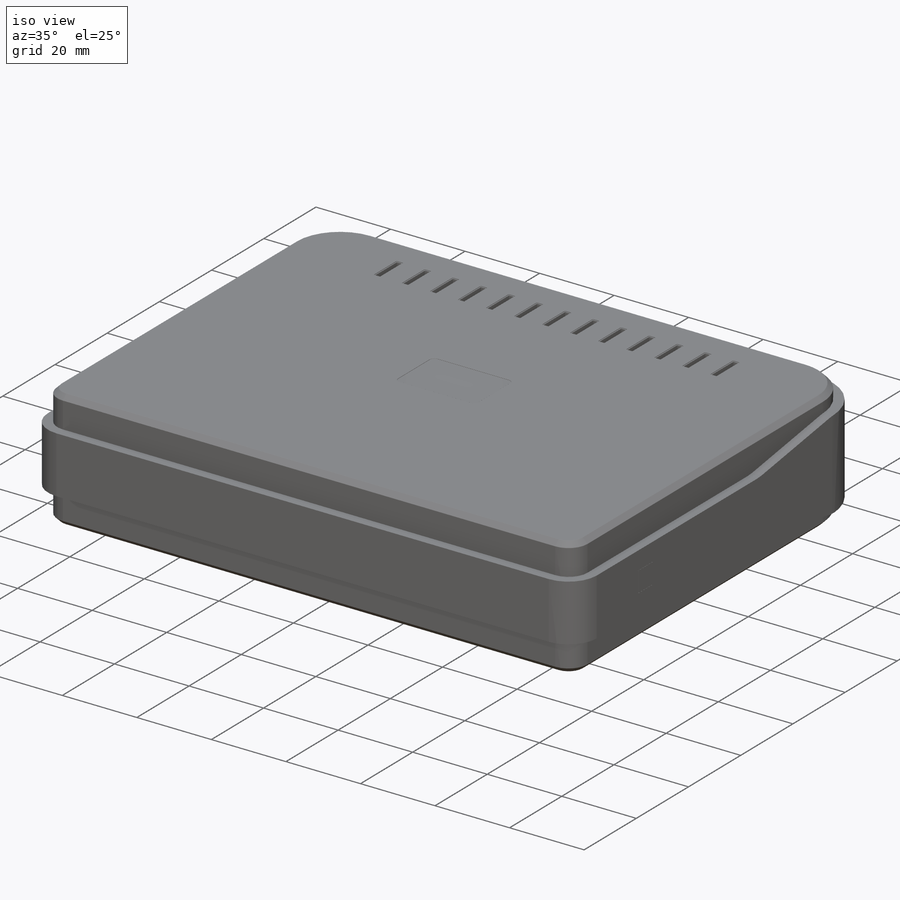
[diagram: iso view]
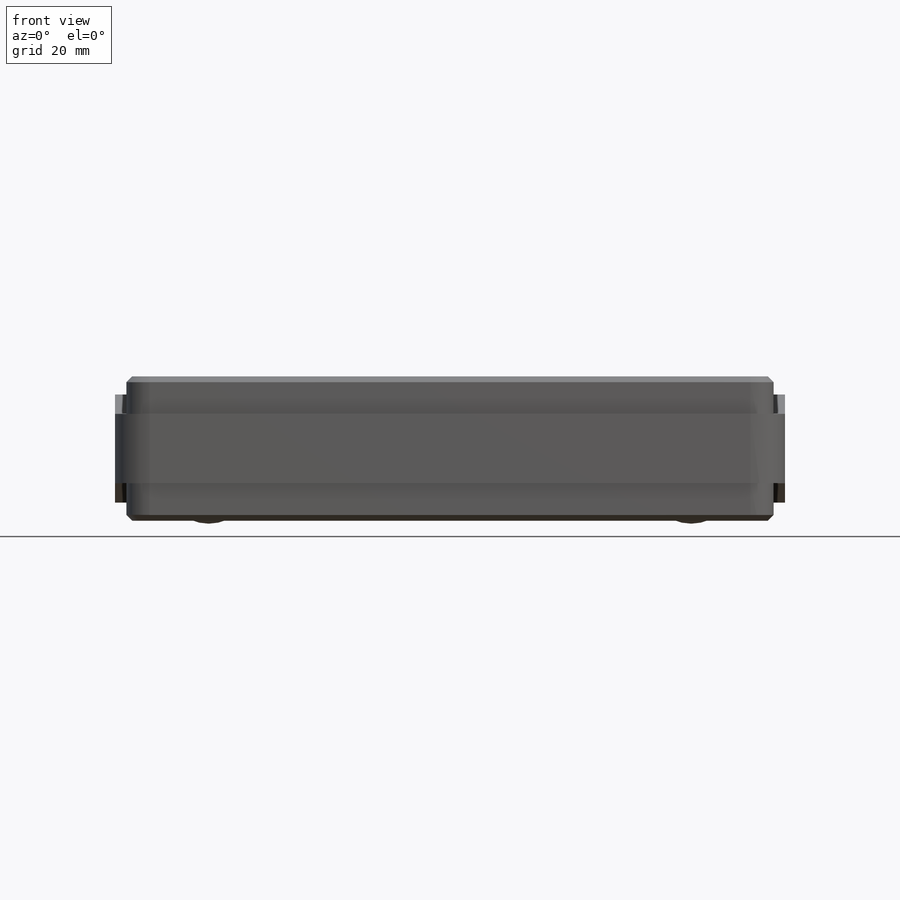
[diagram: front view]
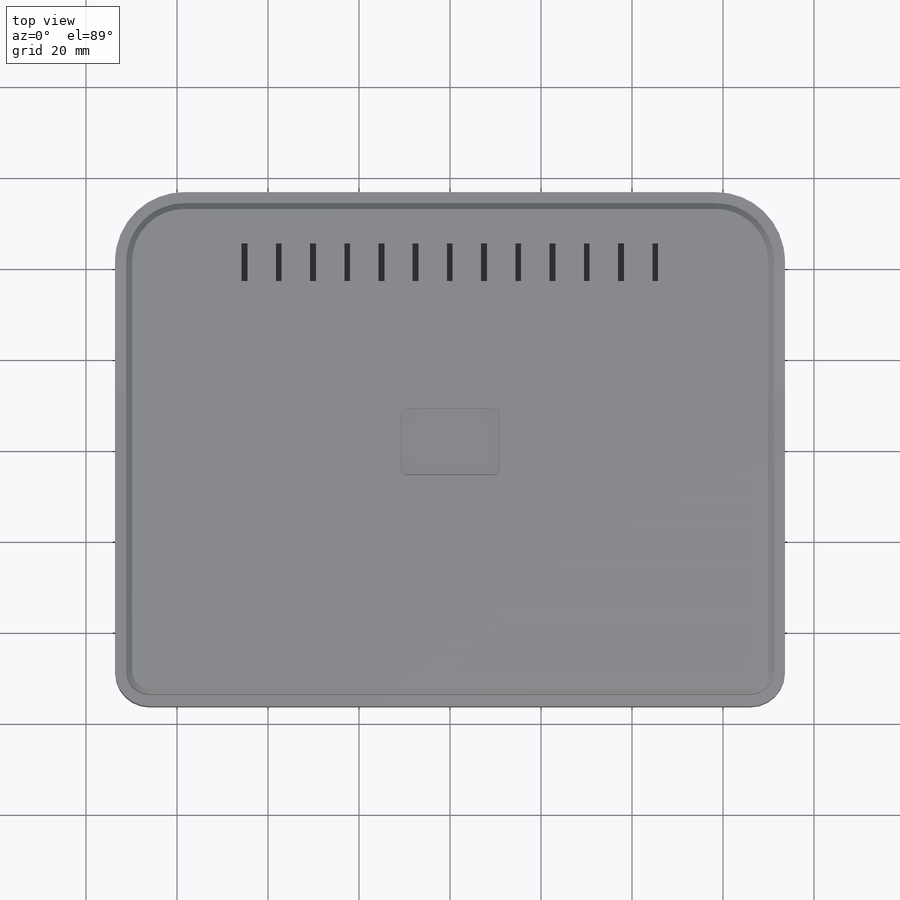
[diagram: top view]
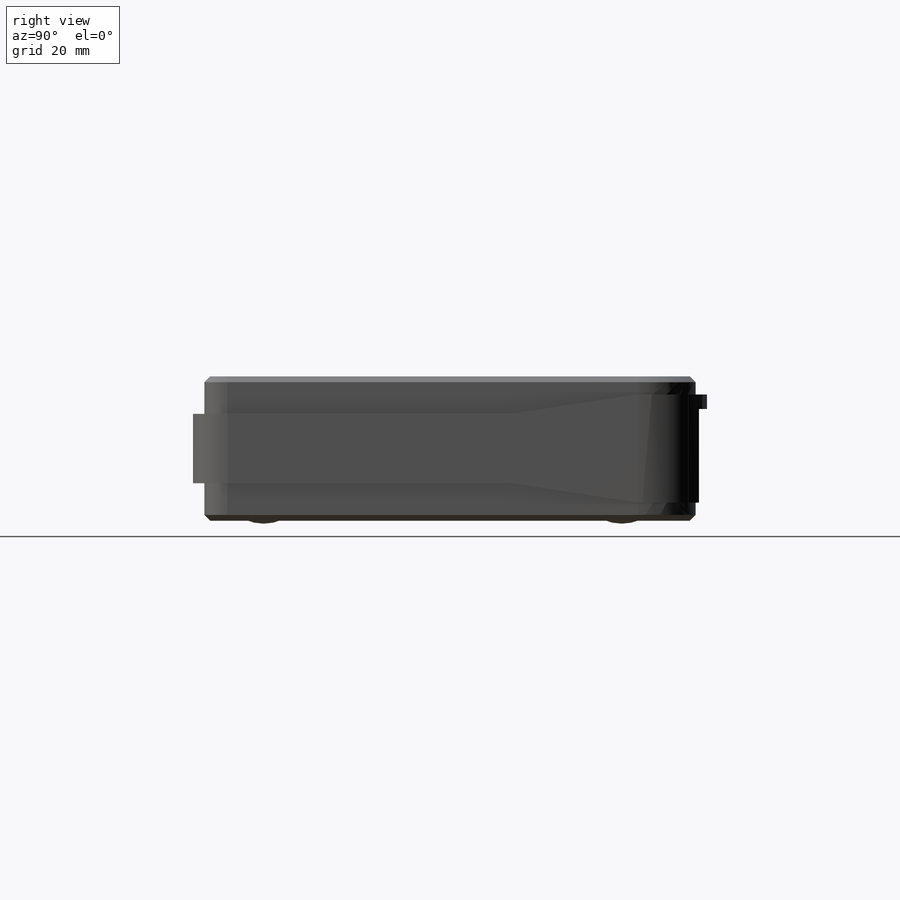
[diagram: right view]
SOLIDWORKS PART (.sldprt)
format: sldprt  version: not decoded by parser v0  size: 1,792,000 bytes
history: native  units: mm
features: sketch x37, cut_extrude x23, fillet x13, extrude x9, pattern_linear x3, chamfer x2, plane x2, revolve x2, mirror x2, material x1 (+13 scaffold rows collapsed)
feature tree (107):
  scaffold x13  (default folders/planes/origin — collapsed)
  material  "PBT General Purpose"
  sketch  "Sketch1"  dims[D1=142.24mm D2=107.95mm]
  extrude  "Boss-Extrude1"  Depth=31.75mm
  fillet  "Fillet1"  Radius=5.08mm
  fillet  "Fillet9"  Radius=12.7mm
  chamfer  "Chamfer1"  Distance=1.27mm Angle=45deg
  sketch  "Sketch2"  dims[D1=82.55mm D2=49.53mm]
  cut_extrude  "Cut-Extrude1"  Depth=0.508mm
  fillet  "Fillet2"  Radius=7.62mm
  fillet  "Fillet3"  Radius=0.254mm
  sketch  "Sketch3"  dims[D1=25.4mm D2=1.27mm D3=8.255mm D4=8.89mm]
  cut_extrude  "Cut-Extrude2"  Depth=4.445mm
  sketch  "Sketch4"  dims[D1=0.254mm D2=0.254mm]
  cut_extrude  "Cut-Extrude3"  Depth=0.127mm
  fillet  "Fillet4"  Radius=0.254mm
  pattern_linear  "LPattern1"  Count1=13 Count2=1 Spacing1=7.522308mm Spacing2=2.54mm
  sketch  "Sketch5"  dims[D1=1.27mm D2=8.255mm D3=25.4mm D4=8.89mm]
  cut_extrude  "Cut-Extrude4"  Depth=4.445mm
  sketch  "Sketch6"  dims[D1=0.254mm]
  cut_extrude  "Cut-Extrude5"  Depth=0.254mm
  fillet  "Fillet5"  Radius=0.254mm
  pattern_linear  "LPattern2"  Count1=13 Count2=1 Spacing1=7.522308mm Spacing2=2.54mm
  sketch  "Sketch7"  dims[c1.D3=8.255mm c1.D1=7.62mm c1.D2=13.97mm c2.D1=12.065mm c2.D2=13.97mm c3.D1=12.065mm]
  cut_extrude  "Cut-Extrude6"  Depth=0.254mm
  plane  "Plane1"
  sketch  "Sketch8"  dims[D1=0.635mm]
  revolve  "Revolve1"  Angle=360deg
  sketch  "Sketch9"  dims[D1=6.35mm]
  cut_extrude  "Cut-Extrude7"  Depth=0.254mm
  plane  "Plane2"
  sketch  "Sketch10"  dims[D1=0.0mm]
  revolve  "Revolve2"  Angle=360deg
  mirror  "Mirror1"
  sketch  "Sketch11"  dims[c1.D1=7.62mm c1.D4=7.62mm c1.D2=4.445mm c1.D3=17.272mm c2.D4=12.827mm c3.D4=45.0deg c3.D5=10.795mm]
  cut_extrude  "Cut-Extrude8"  Depth=4.445mm
  sketch  "Sketch12"
  cut_extrude  "Cut-Extrude9"  Depth=4.445mm
  sketch  "Sketch13"  dims[D1=48.26mm D2=45.085mm D3=60.325mm]
  cut_extrude  "Cut-Extrude10"  Depth=0.127mm
  fillet  "Fillet6"  Radius=1.27mm
  fillet  "Fillet7"  Radius=0.0635mm
  fillet  "Fillet8"  Radius=0.127mm
  sketch  "Sketch15"  dims[c1.D1=147.828mm c1.D2=113.03mm c2.D1=2.54mm]
  extrude  "Boss-Extrude2"  Depth=23.749mm
  sketch  "Sketch17"  dims[D1=69.85mm D2=15.24mm]
  cut_extrude  "Cut-Extrude11"  [1 undecoded]
  sketch  "Sketch18"
  cut_extrude  "Cut-Extrude12"  [1 undecoded]
  fillet  "Fillet10"  Radius=12.7mm
  sketch  "Sketch20"  dims[D1=0.0mm]
  cut_extrude  "Cut-Extrude14"  [1 undecoded]
  sketch  "Sketch21"  dims[D1=0.0mm]
  cut_extrude  "Cut-Extrude15"  [1 undecoded]
  sketch  "Sketch22"  dims[D1=8.001mm D2=22.225mm]
  cut_extrude  "Cut-Extrude16"  [1 undecoded]
  fillet  "Fillet11"  Radius=0.635mm
  sketch  "Sketch23"  dims[D1=1.27mm]
  extrude  "Boss-Extrude3"  [1 undecoded]
  sketch  "Sketch25"  dims[c1.D1=0.0mm c1.D2=0.0mm c2.D1=0.0254mm c2.D2=0.0254mm]
  extrude  "Boss-Extrude4"  [1 undecoded]
  sketch  "Sketch26"  dims[c1.D1=~2.504311mm c2.D1=~179.683069deg c3.D1=0.0254mm c3.D2=0.0254mm c3.D3=0.0254mm c3.D4=0.0254mm]
  cut_extrude  "Cut-Extrude17"  [1 undecoded]
  sketch  "Sketch27"  dims[D1=4.064mm D2=3.175mm D3=4.064mm]
  cut_extrude  "Cut-Extrude20"  Depth=1.905mm
  chamfer  "Chamfer3"  Distance=1.27mm Angle=45deg
  sketch  "Sketch29"  dims[D1=59.055mm D2=13.97mm D3=15.24mm D4=21.59mm]
  cut_extrude  "Cut-Extrude25"  Depth=11.43mm
  sketch  "Sketch30"  dims[D1=0.0mm]
  extrude  "Boss-Extrude5"  [1 undecoded]
  sketch  "Sketch31"  dims[c1.D1=24.765mm c1.D2=6.604mm c1.D3=12.065mm c1.D4=11.176mm c1.D5=2.8575mm c1.D6=0.508mm c1.D7=2.794mm c1.D8=6.223mm c1.D9=~1.052963mm c2.D9=90.0deg c3.D9=1.524mm c3.D10=1.524mm c3.D11=4.318mm c3.D4=11.43mm]
  cut_extrude  "Cut-Extrude26"  Depth=11.43mm
  pattern_linear  "LPattern3"  Count1=4 Count2=1 Spacing1=13.5509mm Spacing2=2.54mm
  sketch  "Sketch32"  dims[D1=4.572mm D2=7.239mm D3=8.255mm D4=8.255mm]
  cut_extrude  "Cut-Extrude27"  Depth=5.08mm
  sketch  "Sketch33"  dims[D1=0.127mm D2=0.127mm D3=0.254mm D4=3.81mm]
  extrude  "Boss-Extrude7"  Depth=0.635mm
  fillet  "Fillet12"  Radius=1.27mm
  sketch  "Sketch34"  dims[D1=2.54mm D2=8.89mm]
  cut_extrude  "Cut-Extrude28"  Depth=6.35mm
  sketch  "Sketch35"  dims[D1=0.0254mm D2=0.0254mm]
  extrude  "Boss-Extrude8"  Depth=3.175mm
  sketch  "Sketch36"  dims[D1=11.43mm D2=9.525mm D3=32.766mm]
  cut_extrude  "Cut-Extrude29"  Depth=10.16mm
  sketch  "Sketch37"  dims[D1=0.0254mm]
  extrude  "Boss-Extrude9"  [1 undecoded]
  sketch  "Sketch38"  dims[D2=6.35mm D1=4.191mm]
  cut_extrude  "Cut-Extrude30"  Depth=9.144mm
  sketch  "Sketch39"  dims[D1=1.905mm D2=1.905mm]
  extrude  "Boss-Extrude10"  [1 undecoded]
  fillet  "Fillet13"  Radius=0.254mm
  sketch  "Sketch40"
  sketch  "4_0_Point"  dims[Diameter=2.0mm Width=0.0 Depth=0.0 StubLength=2.0mm]
  sketch  "5_0_Point"
  mirror  "Axis2"  Diameter=2mm Width=0 Depth=0 StubLength=2mm
decode coverage: 75 of 91 modeling features carry decoded parameters
note: ~ marks probable driven/reference dimensions
note: 11 parameter values undecoded
summary: no parameter record found for 11 features
note: suppression state not decoded; provenance and decode notes live in map.json
